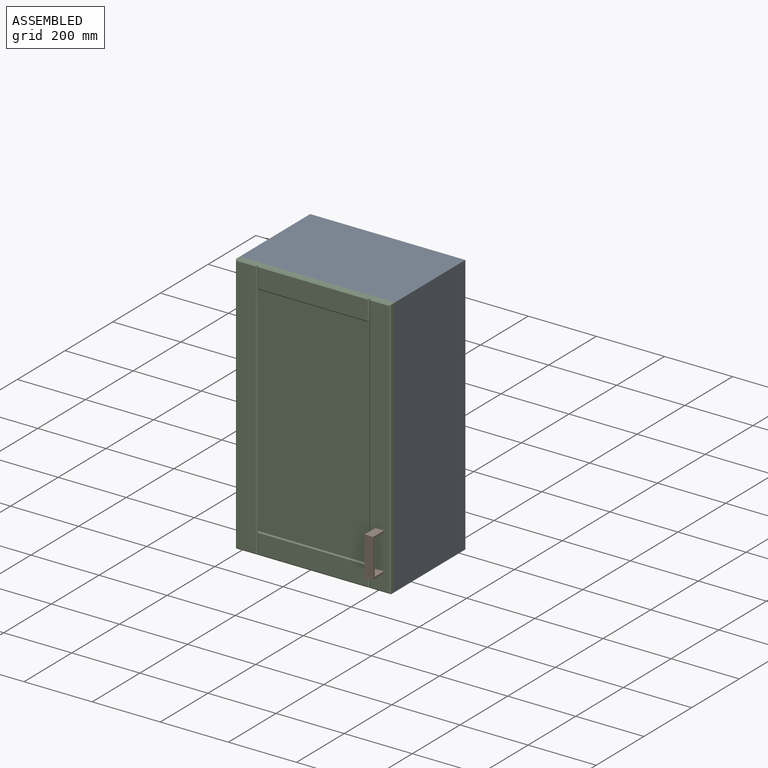
[diagram: assembled view]
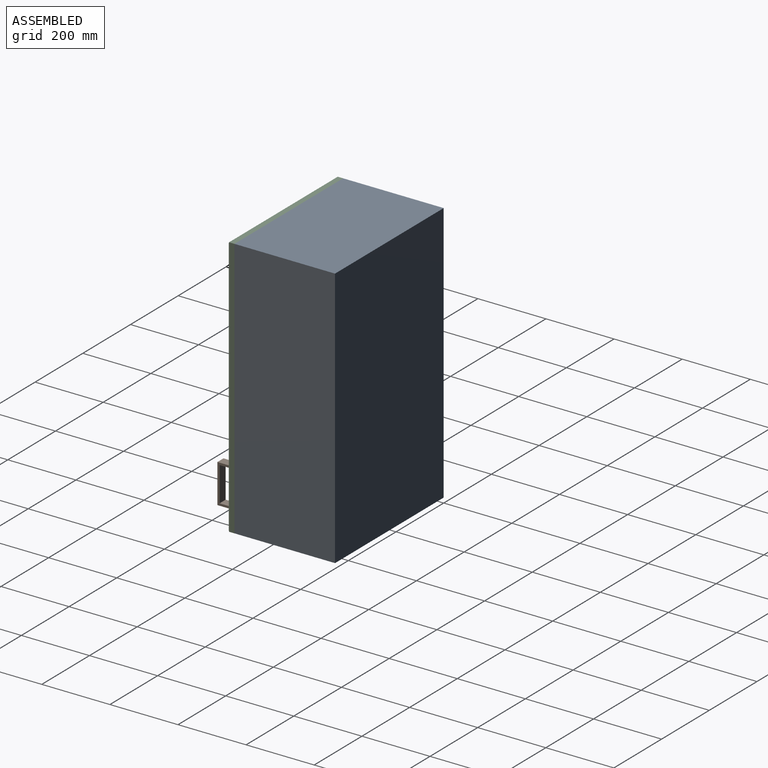
[diagram: assembled view, second angle]
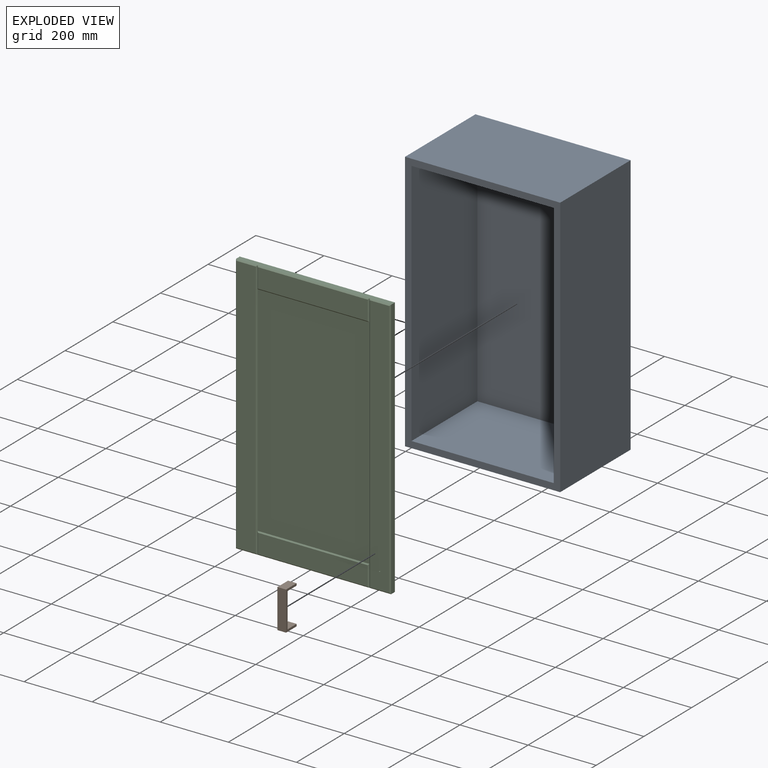
[diagram: exploded view]
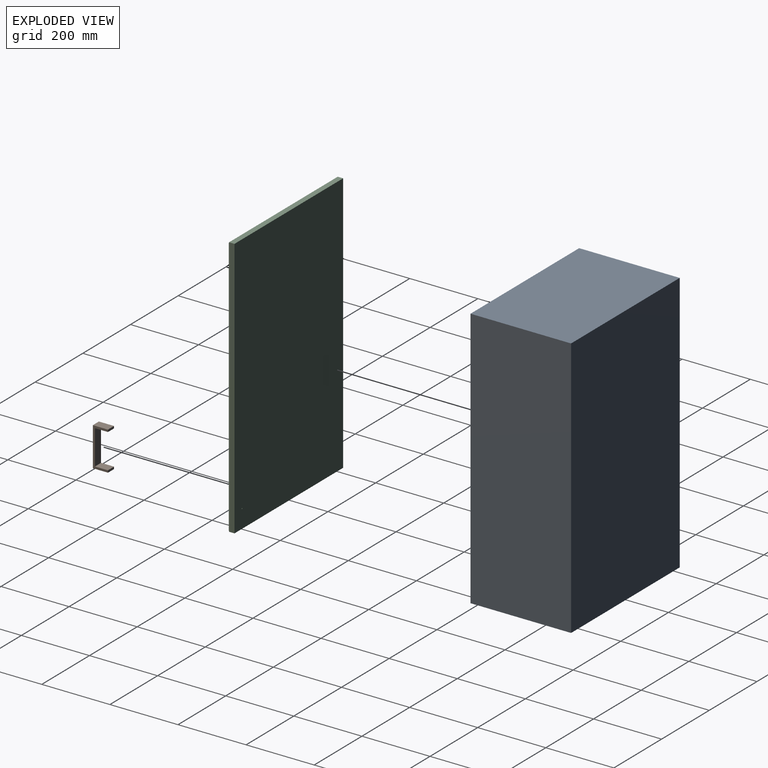
[diagram: exploded view, second angle]
ASSEMBLY  parts=3 mates=2
PART A: 11 faces, bbox 455.6x295.3x768.4 mm
  f0: plane 768.35x455.61mm, normal (0,-1,0), area 45181.4mm2, adj f1,f2,f3,f4,f6,f7,f8,f9
  f1: plane 455.61x295.28mm, normal (0,0,1), area 134531mm2, adj f0,f2,f4,f5
  f2: plane 768.35x295.28mm, normal (-1,0,0), area 226874.5mm2, adj f0,f1,f3,f5
  f3: plane 455.61x295.28mm, normal (0,0,-1), area 134531mm2, adj f0,f2,f4,f5
  f4: plane 768.35x295.28mm, normal (1,0,0), area 226874.5mm2, adj f0,f1,f3,f5
  f5: plane 768.35x455.61mm, normal (0,1,0), area 350069.9mm2, adj f1,f2,f3,f4
  f6: plane 417.51x276.23mm, normal (0,0,-1), area 115327.4mm2, adj f0,f7,f9,f10
  f7: plane 730.25x276.23mm, normal (1,0,0), area 201713.3mm2, adj f0,f6,f8,f10
  f8: plane 417.51x276.23mm, normal (0,0,1), area 115327.4mm2, adj f0,f7,f9,f10
  f9: plane 730.25x276.23mm, normal (-1,0,0), area 201713.3mm2, adj f0,f6,f8,f10
  f10: plane 730.25x417.51mm, normal (0,-1,0), area 304888.5mm2, adj f6,f7,f8,f9
PART B: 10 faces, bbox 25.4x44.5x114.3 mm
  f0: plane 25.4x6.35mm, normal (0,1,0), area 161.3mm2, adj f1,f7,f8,f9
  f1: plane 44.45x25.4mm, normal (0,0,1), area 1129mm2, adj f0,f2,f8,f9
  f2: plane 114.3x25.4mm, normal (0,-1,0), area 2903.2mm2, adj f1,f3,f8,f9
  f3: plane 44.45x25.4mm, normal (0,0,-1), area 1129mm2, adj f2,f4,f8,f9
  f4: plane 25.4x6.35mm, normal (0,1,0), area 161.3mm2, adj f3,f5,f8,f9
  f5: plane 38.1x25.4mm, normal (0,0,1), area 967.7mm2, adj f4,f6,f8,f9
  f6: plane 101.6x25.4mm, normal (0,1,0), area 2580.6mm2, adj f5,f7,f8,f9
  f7: plane 38.1x25.4mm, normal (0,0,-1), area 967.7mm2, adj f0,f6,f8,f9
  f8: plane 114.3x44.45mm, normal (1,0,0), area 1209.7mm2, adj f0,f1,f2,f3,f4,f5,f6,f7
  f9: plane 114.3x44.45mm, normal (-1,0,0), area 1209.7mm2, adj f0,f1,f2,f3,f4,f5,f6,f7
PART C: 27 faces, bbox 455.6x19.1x768.4 mm
  f0: plane 455.61x15.88mm, normal (0,0,-1), area 7232.8mm2, adj f1,f4,f7,f10,f20,f24
  f1: plane 768.35x15.88mm, normal (1,0,0), area 12197.6mm2, adj f0,f2,f4,f5
  f2: plane 455.61x15.88mm, normal (0,0,1), area 7232.8mm2, adj f1,f4,f6,f15,f20,f23
  f3: plane 762x57.15mm, normal (0,-1,0), area 43540.4mm2, adj f5,f6,f7,f8,f26
  f4: plane 768.35x455.61mm, normal (0,1,0), area 350061.9mm2, adj f0,f1,f2,f20,f26
  f5: plane 768.35x3.18mm, normal (0.71,-0.71,0), area 3435.7mm2, adj f1,f3,f6,f7
  f6: plane 63.5x3.18mm, normal (0,-0.71,0.71), area 270.9mm2, adj f2,f3,f5,f8
  f7: plane 63.5x3.18mm, normal (0,-0.71,-0.71), area 270.9mm2, adj f0,f3,f5,f8
  f8: plane 768.35x3.18mm, normal (-0.71,-0.71,0), area 3435.7mm2, adj f3,f6,f7,f12,f17,f19
  f9: plane 322.26x57.15mm, normal (0,-1,0), area 18417.3mm2, adj f10,f11,f12,f13
  f10: plane 328.61x3.18mm, normal (0,-0.71,-0.71), area 1461.3mm2, adj f0,f9,f11,f12
  f11: plane 63.5x3.18mm, normal (-0.71,-0.71,0), area 270.9mm2, adj f9,f10,f13,f25
  f12: plane 63.5x3.18mm, normal (0.71,-0.71,0), area 270.9mm2, adj f8,f9,f10,f13
  f13: plane 328.61x3.18mm, normal (0,-0.71,0.71), area 1461.3mm2, adj f9,f11,f12,f19
  f14: plane 322.26x57.15mm, normal (0,-1,0), area 18417.3mm2, adj f15,f16,f17,f18
  f15: plane 328.61x3.18mm, normal (0,-0.71,0.71), area 1461.3mm2, adj f2,f14,f16,f17
  f16: plane 63.5x3.18mm, normal (-0.71,-0.71,0), area 270.9mm2, adj f14,f15,f18,f25
  f17: plane 63.5x3.18mm, normal (0.71,-0.71,0), area 270.9mm2, adj f8,f14,f15,f18
  f18: plane 328.61x3.18mm, normal (0,-0.71,-0.71), area 1461.3mm2, adj f14,f16,f17,f19
  f19: plane 641.35x328.61mm, normal (0,-1,0), area 210755.6mm2, adj f8,f13,f18,f25
  f20: plane 768.35x15.88mm, normal (-1,0,0), area 12197.6mm2, adj f0,f2,f4,f22
  f21: plane 762x57.15mm, normal (0,-1,0), area 43548.3mm2, adj f22,f23,f24,f25
  f22: plane 768.35x3.18mm, normal (-0.71,-0.71,0), area 3435.7mm2, adj f20,f21,f23,f24
  f23: plane 63.5x3.18mm, normal (0,-0.71,0.71), area 270.9mm2, adj f2,f21,f22,f25
  f24: plane 63.5x3.18mm, normal (0,-0.71,-0.71), area 270.9mm2, adj f0,f21,f22,f25
  f25: plane 768.35x3.18mm, normal (0.71,-0.71,0), area 3435.7mm2, adj f11,f16,f19,f21,f23,f24
  f26: cylinder r=1.59mm len=19.05mm, axis (0,-1,0), area 190mm2, adj f3,f4
PLACE A t=(0,-295.28,0)mm fixed
PLACE B t=(423.86,-314.33,158.75)mm
PLACE C t=(227.81,-295.28,384.18)mm
MATE fastened C.f4 <-> A.f0  axis (0,1,0) through (0,-295.28,768.35)mm
MATE fastened C.f26 <-> B.f4  axis (0,-1,0) through (423.86,-314.33,53.98)mm
